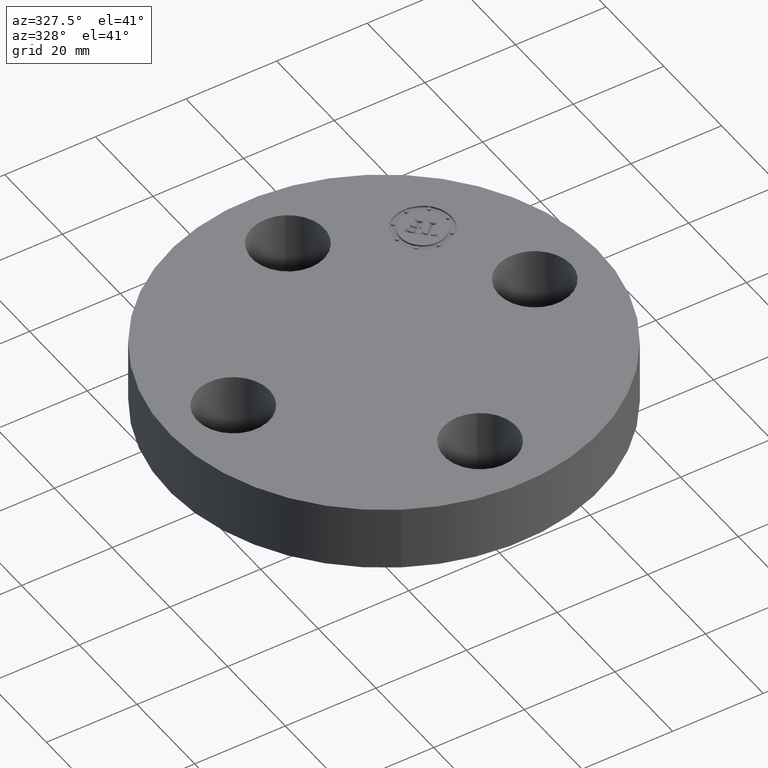
[diagram: clean part render]
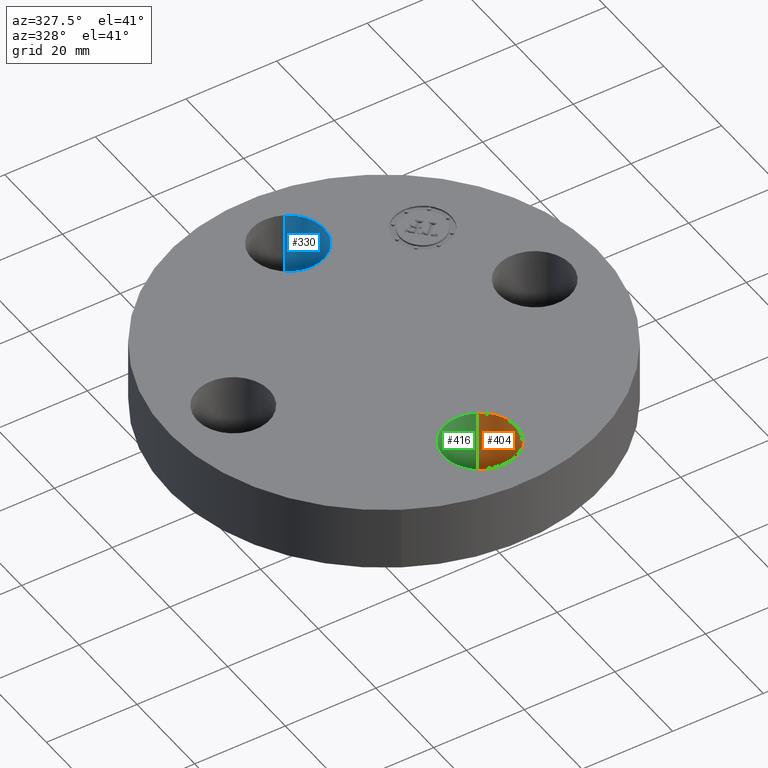
[diagram: same view with three faces highlighted in distinct colors, each labeled with its STEP entity id]
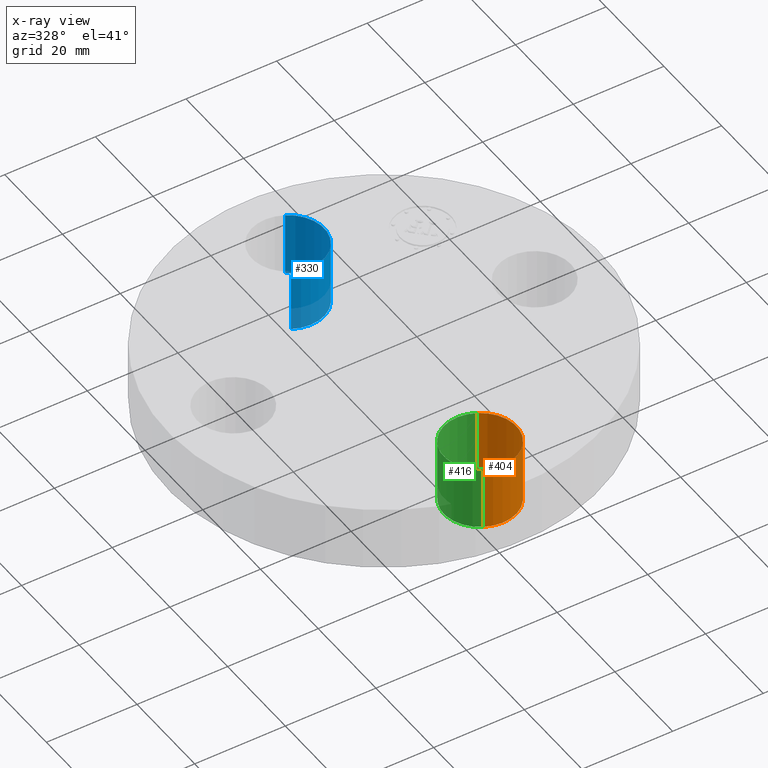
[diagram: x-ray of the same camera — body ghosted, the three highlighted faces saturated]
A machine part, auxiliary view with three faces highlighted in distinct colors.
The next image is the same camera in x-ray (body ghosted, the three faces saturated) — at least one of them is partly hidden behind the body in this view.
Their STEP definitions:

[orange] entity #404 — the highlighted cylindrical surface (partial cylindrical patch) has radius 8.001 mm, axis along (0, -0, -1).
#235=AXIS2_PLACEMENT_3D('Circle Axis2P3D',#233,#234,$) ;
#377=AXIS2_PLACEMENT_3D('Cylinder Axis2P3D',#374,#375,#376) ;
#395=AXIS2_PLACEMENT_3D('Circle Axis2P3D',#393,#394,$) ;
#233=CARTESIAN_POINT('Axis2P3D Location',(-3.49676543189E-017,-1.31000000001,0.)) ;
#237=CARTESIAN_POINT('Vertex',(0.151019044661,-1.03356149301,0.)) ;
#239=CARTESIAN_POINT('Vertex',(-0.151019044661,-1.586438507,0.)) ;
#374=CARTESIAN_POINT('Axis2P3D Location',(-1.99526869207E-016,-1.31000000001,0.556062992128)) ;
#379=CARTESIAN_POINT('Line Origine',(0.151019044661,-1.03356149301,0.280000000001)) ;
#383=CARTESIAN_POINT('Vertex',(0.151019044661,-1.03356149301,0.560000000002)) ;
#386=CARTESIAN_POINT('Line Origine',(-0.151019044661,-1.586438507,0.280000000001)) ;
#390=CARTESIAN_POINT('Vertex',(-0.151019044661,-1.586438507,0.560000000002)) ;
#393=CARTESIAN_POINT('Axis2P3D Location',(-1.99526869207E-016,-1.31000000001,0.560000000002)) ;
#234=DIRECTION('Axis2P3D Direction',(0.,0.,-0.0393700787402)) ;
#375=DIRECTION('Axis2P3D Direction',(0.,-0.,-0.0393700787402)) ;
#376=DIRECTION('Axis2P3D XDirection',(-0.0188750212049,-0.0345504945626,0.)) ;
#380=DIRECTION('Vector Direction',(0.,0.,-0.0393700787402)) ;
#387=DIRECTION('Vector Direction',(0.,0.,-0.0393700787402)) ;
#394=DIRECTION('Axis2P3D Direction',(0.,-0.,-0.0393700787402)) ;
#381=VECTOR('Line Direction',#380,0.0393700787402) ;
#388=VECTOR('Line Direction',#387,0.0393700787402) ;
#399=ORIENTED_EDGE('',*,*,#385,.F.) ;
#400=ORIENTED_EDGE('',*,*,#241,.T.) ;
#401=ORIENTED_EDGE('',*,*,#392,.T.) ;
#402=ORIENTED_EDGE('',*,*,#397,.F.) ;
#404=ADVANCED_FACE('PartBody',(#403),#378,.F.) ;
#236=CIRCLE('generated circle',#235,0.315000000001) ;
#396=CIRCLE('generated circle',#395,0.315000000001) ;
#378=CYLINDRICAL_SURFACE('generated cylinder',#377,0.315000000001) ;
#241=EDGE_CURVE('',#238,#240,#236,.T.) ;
#385=EDGE_CURVE('',#238,#384,#382,.F.) ;
#392=EDGE_CURVE('',#240,#391,#389,.F.) ;
#397=EDGE_CURVE('',#384,#391,#396,.T.) ;
#398=EDGE_LOOP('',(#399,#400,#401,#402)) ;
#403=FACE_OUTER_BOUND('',#398,.T.) ;
#382=LINE('Line',#379,#381) ;
#389=LINE('Line',#386,#388) ;
#238=VERTEX_POINT('',#237) ;
#240=VERTEX_POINT('',#239) ;
#384=VERTEX_POINT('',#383) ;
#391=VERTEX_POINT('',#390) ;

[blue] entity #330 — the highlighted cylindrical surface (partial cylindrical patch) has radius 8.001 mm, axis along (0, 0, -1).
#280=AXIS2_PLACEMENT_3D('Circle Axis2P3D',#278,#279,$) ;
#291=AXIS2_PLACEMENT_3D('Cylinder Axis2P3D',#288,#289,#290) ;
#321=AXIS2_PLACEMENT_3D('Circle Axis2P3D',#319,#320,$) ;
#273=CARTESIAN_POINT('Vertex',(-0.151019044661,1.03356149301,0.)) ;
#275=CARTESIAN_POINT('Vertex',(0.151019044661,1.586438507,0.)) ;
#278=CARTESIAN_POINT('Axis2P3D Location',(-3.1470888887E-016,1.31000000001,0.)) ;
#288=CARTESIAN_POINT('Axis2P3D Location',(-2.40643096033E-016,1.31000000001,0.556062992128)) ;
#293=CARTESIAN_POINT('Line Origine',(-0.151019044661,1.03356149301,0.280000000001)) ;
#297=CARTESIAN_POINT('Vertex',(-0.151019044661,1.03356149301,0.560000000002)) ;
#300=CARTESIAN_POINT('Line Origine',(0.151019044661,1.586438507,0.280000000001)) ;
#304=CARTESIAN_POINT('Vertex',(0.151019044661,1.586438507,0.560000000002)) ;
#319=CARTESIAN_POINT('Axis2P3D Location',(-2.40643096033E-016,1.31000000001,0.560000000002)) ;
#279=DIRECTION('Axis2P3D Direction',(0.,0.,-0.0393700787402)) ;
#289=DIRECTION('Axis2P3D Direction',(0.,0.,-0.0393700787402)) ;
#290=DIRECTION('Axis2P3D XDirection',(0.0188750212049,0.0345504945626,0.)) ;
#294=DIRECTION('Vector Direction',(0.,0.,-0.0393700787402)) ;
#301=DIRECTION('Vector Direction',(0.,0.,-0.0393700787402)) ;
#320=DIRECTION('Axis2P3D Direction',(0.,0.,-0.0393700787402)) ;
#295=VECTOR('Line Direction',#294,0.0393700787402) ;
#302=VECTOR('Line Direction',#301,0.0393700787402) ;
#325=ORIENTED_EDGE('',*,*,#306,.F.) ;
#326=ORIENTED_EDGE('',*,*,#282,.T.) ;
#327=ORIENTED_EDGE('',*,*,#299,.T.) ;
#328=ORIENTED_EDGE('',*,*,#323,.F.) ;
#330=ADVANCED_FACE('PartBody',(#329),#292,.F.) ;
#281=CIRCLE('generated circle',#280,0.315000000001) ;
#322=CIRCLE('generated circle',#321,0.315000000001) ;
#292=CYLINDRICAL_SURFACE('generated cylinder',#291,0.315000000001) ;
#282=EDGE_CURVE('',#276,#274,#281,.T.) ;
#299=EDGE_CURVE('',#274,#298,#296,.F.) ;
#306=EDGE_CURVE('',#276,#305,#303,.F.) ;
#323=EDGE_CURVE('',#305,#298,#322,.T.) ;
#324=EDGE_LOOP('',(#325,#326,#327,#328)) ;
#329=FACE_OUTER_BOUND('',#324,.T.) ;
#296=LINE('Line',#293,#295) ;
#303=LINE('Line',#300,#302) ;
#274=VERTEX_POINT('',#273) ;
#276=VERTEX_POINT('',#275) ;
#298=VERTEX_POINT('',#297) ;
#305=VERTEX_POINT('',#304) ;

[green] entity #416 — the highlighted cylindrical surface (partial cylindrical patch) has radius 8.001 mm, axis along (0, -0, -1).
#244=AXIS2_PLACEMENT_3D('Circle Axis2P3D',#242,#243,$) ;
#377=AXIS2_PLACEMENT_3D('Cylinder Axis2P3D',#374,#375,#376) ;
#407=AXIS2_PLACEMENT_3D('Circle Axis2P3D',#405,#406,$) ;
#237=CARTESIAN_POINT('Vertex',(0.151019044661,-1.03356149301,0.)) ;
#239=CARTESIAN_POINT('Vertex',(-0.151019044661,-1.586438507,0.)) ;
#242=CARTESIAN_POINT('Axis2P3D Location',(-1.39870617276E-016,-1.31000000001,0.)) ;
#374=CARTESIAN_POINT('Axis2P3D Location',(-1.99526869207E-016,-1.31000000001,0.556062992128)) ;
#379=CARTESIAN_POINT('Line Origine',(0.151019044661,-1.03356149301,0.280000000001)) ;
#383=CARTESIAN_POINT('Vertex',(0.151019044661,-1.03356149301,0.560000000002)) ;
#386=CARTESIAN_POINT('Line Origine',(-0.151019044661,-1.586438507,0.280000000001)) ;
#390=CARTESIAN_POINT('Vertex',(-0.151019044661,-1.586438507,0.560000000002)) ;
#405=CARTESIAN_POINT('Axis2P3D Location',(-1.99526869207E-016,-1.31000000001,0.560000000002)) ;
#243=DIRECTION('Axis2P3D Direction',(0.,0.,-0.0393700787402)) ;
#375=DIRECTION('Axis2P3D Direction',(0.,-0.,-0.0393700787402)) ;
#376=DIRECTION('Axis2P3D XDirection',(-0.0188750212049,-0.0345504945626,0.)) ;
#380=DIRECTION('Vector Direction',(0.,0.,-0.0393700787402)) ;
#387=DIRECTION('Vector Direction',(0.,0.,-0.0393700787402)) ;
#406=DIRECTION('Axis2P3D Direction',(0.,-0.,-0.0393700787402)) ;
#381=VECTOR('Line Direction',#380,0.0393700787402) ;
#388=VECTOR('Line Direction',#387,0.0393700787402) ;
#411=ORIENTED_EDGE('',*,*,#392,.F.) ;
#412=ORIENTED_EDGE('',*,*,#246,.T.) ;
#413=ORIENTED_EDGE('',*,*,#385,.T.) ;
#414=ORIENTED_EDGE('',*,*,#409,.F.) ;
#416=ADVANCED_FACE('PartBody',(#415),#378,.F.) ;
#245=CIRCLE('generated circle',#244,0.315000000001) ;
#408=CIRCLE('generated circle',#407,0.315000000001) ;
#378=CYLINDRICAL_SURFACE('generated cylinder',#377,0.315000000001) ;
#246=EDGE_CURVE('',#240,#238,#245,.T.) ;
#385=EDGE_CURVE('',#238,#384,#382,.F.) ;
#392=EDGE_CURVE('',#240,#391,#389,.F.) ;
#409=EDGE_CURVE('',#391,#384,#408,.T.) ;
#410=EDGE_LOOP('',(#411,#412,#413,#414)) ;
#415=FACE_OUTER_BOUND('',#410,.T.) ;
#382=LINE('Line',#379,#381) ;
#389=LINE('Line',#386,#388) ;
#238=VERTEX_POINT('',#237) ;
#240=VERTEX_POINT('',#239) ;
#384=VERTEX_POINT('',#383) ;
#391=VERTEX_POINT('',#390) ;